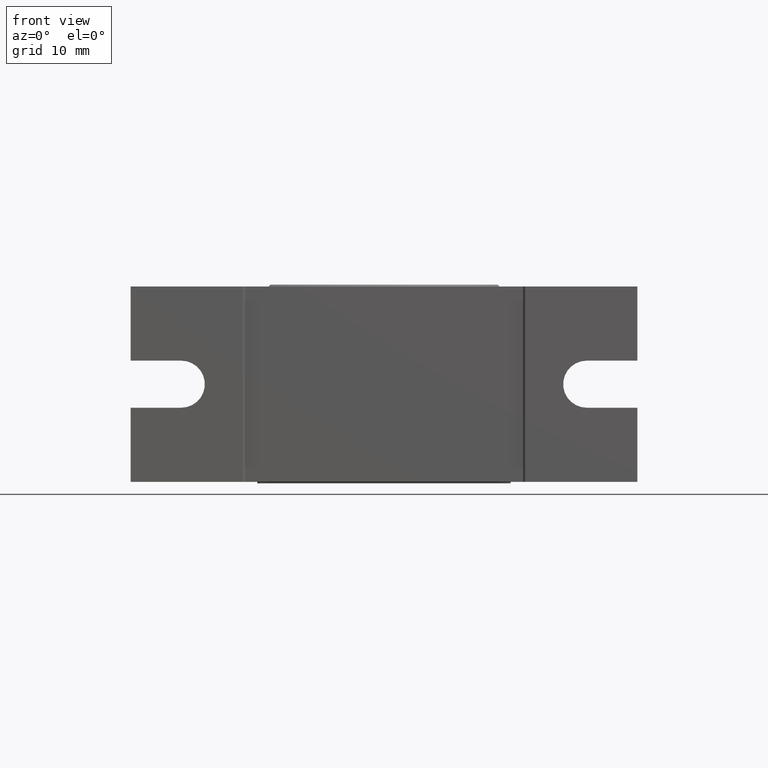
[diagram: clean part render]
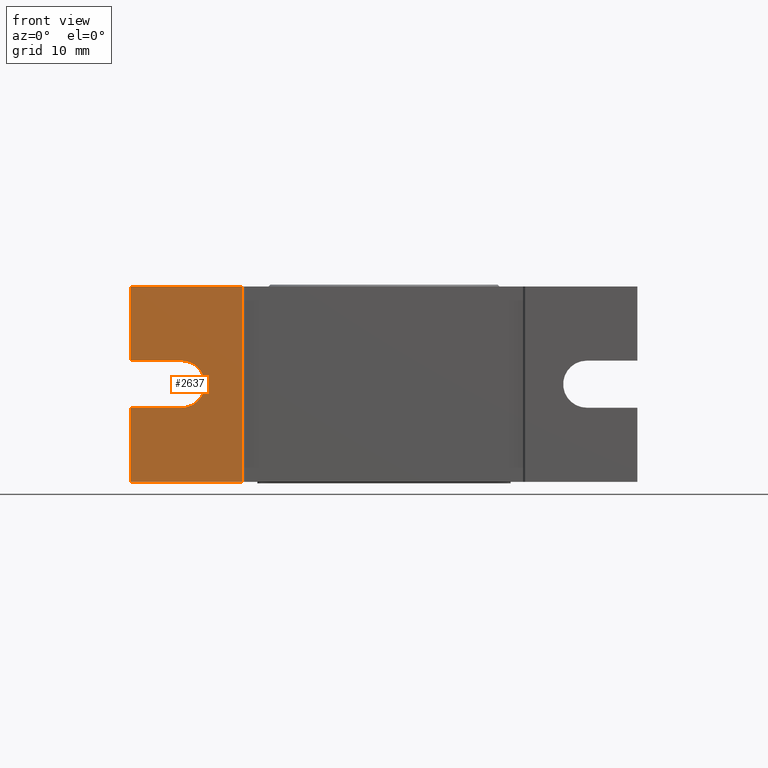
[diagram: same view with one face highlighted and labeled with its STEP entity id]
A machine part, front view. The second image highlights one B-rep face of the part: STEP entity #2637.
In plain terms, the highlighted planar face has unit normal (0, 1, 0).
Its self-contained STEP definition (entity closure, byte-faithful):
#140 = DIRECTION ( 'NONE',  ( 1.000000000000000000, 0.0000000000000000000, 0.0000000000000000000 ) ) ;
#428 = CARTESIAN_POINT ( 'NONE',  ( -28.00000000000000000, -20.00000000000000000, -2.143061119189159800E-015 ) ) ;
#500 = ORIENTED_EDGE ( 'NONE', *, *, #21146, .T. ) ;
#960 = LINE ( 'NONE', #5271, #20484 ) ;
#1317 = LINE ( 'NONE', #10661, #19674 ) ;
#1440 = ORIENTED_EDGE ( 'NONE', *, *, #14490, .F. ) ;
#2619 = CARTESIAN_POINT ( 'NONE',  ( -28.00000000000000000, -20.00000000000000000, -3.250000000000000000 ) ) ;
#2636 = DIRECTION ( 'NONE',  ( -1.000000000000000000, 0.0000000000000000000, 6.814985084194599900E-016 ) ) ;
#2637 = ADVANCED_FACE ( 'NONE', ( #12736 ), #8915, .F. ) ;
#3308 = CARTESIAN_POINT ( 'NONE',  ( -35.00000000000000000, -20.00000000000000000, 13.50000000000000000 ) ) ;
#3862 = LINE ( 'NONE', #9456, #15058 ) ;
#3874 = ORIENTED_EDGE ( 'NONE', *, *, #17221, .T. ) ;
#4204 = LINE ( 'NONE', #18202, #23699 ) ;
#4227 = CARTESIAN_POINT ( 'NONE',  ( -35.00000000000000000, -20.00000000000000000, 3.250000000000000000 ) ) ;
#4575 = ORIENTED_EDGE ( 'NONE', *, *, #18875, .T. ) ;
#5271 = CARTESIAN_POINT ( 'NONE',  ( -35.00000000000000000, -20.00000000000000000, 13.50000000000000000 ) ) ;
#5507 = VERTEX_POINT ( 'NONE', #2619 ) ;
#6697 = CARTESIAN_POINT ( 'NONE',  ( -35.00000000000000000, -20.00000000000000000, 13.50000000000000000 ) ) ;
#7678 = LINE ( 'NONE', #11793, #19167 ) ;
#7885 = CARTESIAN_POINT ( 'NONE',  ( -19.50000000000000000, -20.00000000000000000, 13.50000000000000000 ) ) ;
#8911 = EDGE_CURVE ( 'NONE', #21795, #15845, #3862, .T. ) ;
#8915 = PLANE ( 'NONE',  #13860 ) ;
#9196 = EDGE_CURVE ( 'NONE', #21481, #20076, #22379, .T. ) ;
#9456 = CARTESIAN_POINT ( 'NONE',  ( -35.00000000000000000, -20.00000000000000000, -13.50000000000000000 ) ) ;
#9684 = DIRECTION ( 'NONE',  ( 0.0000000000000000000, 1.000000000000000000, 0.0000000000000000000 ) ) ;
#10292 = CARTESIAN_POINT ( 'NONE',  ( -28.00000000000000000, -20.00000000000000000, 3.250000000000000000 ) ) ;
#10661 = CARTESIAN_POINT ( 'NONE',  ( -19.50000000000000000, -20.00000000000000000, -13.50000000000000000 ) ) ;
#11793 = CARTESIAN_POINT ( 'NONE',  ( -35.00000000000000000, -20.00000000000000000, -3.250000000000000000 ) ) ;
#12232 = CARTESIAN_POINT ( 'NONE',  ( -35.00000000000000000, -20.00000000000000000, 3.250000000000000000 ) ) ;
#12355 = VECTOR ( 'NONE', #13448, 1000.000000000000000 ) ;
#12634 = DIRECTION ( 'NONE',  ( 0.0000000000000000000, 0.0000000000000000000, 1.000000000000000000 ) ) ;
#12736 = FACE_OUTER_BOUND ( 'NONE', #21787, .T. ) ;
#13176 = CARTESIAN_POINT ( 'NONE',  ( -35.00000000000000000, -20.00000000000000000, -3.250000000000000000 ) ) ;
#13283 = CARTESIAN_POINT ( 'NONE',  ( -35.00000000000000000, -20.00000000000000000, -13.50000000000000000 ) ) ;
#13448 = DIRECTION ( 'NONE',  ( 1.000000000000000000, 0.0000000000000000000, 6.195440985631449200E-017 ) ) ;
#13860 = AXIS2_PLACEMENT_3D ( 'NONE', #3308, #18158, #12634 ) ;
#14490 = EDGE_CURVE ( 'NONE', #17694, #21313, #15260, .T. ) ;
#14504 = DIRECTION ( 'NONE',  ( 0.0000000000000000000, 0.0000000000000000000, -1.000000000000000000 ) ) ;
#14509 = DIRECTION ( 'NONE',  ( 0.0000000000000000000, 0.0000000000000000000, 1.000000000000000000 ) ) ;
#14651 = DIRECTION ( 'NONE',  ( 0.0000000000000000000, 0.0000000000000000000, -1.000000000000000000 ) ) ;
#15058 = VECTOR ( 'NONE', #18679, 1000.000000000000000 ) ;
#15260 = LINE ( 'NONE', #20292, #18960 ) ;
#15511 = CIRCLE ( 'NONE', #16500, 3.250000000000000000 ) ;
#15540 = EDGE_CURVE ( 'NONE', #20076, #5507, #15511, .T. ) ;
#15845 = VERTEX_POINT ( 'NONE', #22095 ) ;
#16198 = ORIENTED_EDGE ( 'NONE', *, *, #8911, .T. ) ;
#16500 = AXIS2_PLACEMENT_3D ( 'NONE', #428, #9684, #22681 ) ;
#17221 = EDGE_CURVE ( 'NONE', #5507, #22197, #7678, .T. ) ;
#17694 = VERTEX_POINT ( 'NONE', #6697 ) ;
#18158 = DIRECTION ( 'NONE',  ( 0.0000000000000000000, 1.000000000000000000, 0.0000000000000000000 ) ) ;
#18202 = CARTESIAN_POINT ( 'NONE',  ( -35.00000000000000000, -20.00000000000000000, 13.50000000000000000 ) ) ;
#18679 = DIRECTION ( 'NONE',  ( 1.000000000000000000, 0.0000000000000000000, 0.0000000000000000000 ) ) ;
#18803 = EDGE_CURVE ( 'NONE', #15845, #21313, #1317, .T. ) ;
#18846 = ORIENTED_EDGE ( 'NONE', *, *, #18803, .T. ) ;
#18875 = EDGE_CURVE ( 'NONE', #17694, #21481, #4204, .T. ) ;
#18960 = VECTOR ( 'NONE', #140, 1000.000000000000000 ) ;
#19167 = VECTOR ( 'NONE', #2636, 1000.000000000000000 ) ;
#19467 = ORIENTED_EDGE ( 'NONE', *, *, #15540, .T. ) ;
#19627 = ORIENTED_EDGE ( 'NONE', *, *, #9196, .T. ) ;
#19674 = VECTOR ( 'NONE', #14509, 1000.000000000000000 ) ;
#20076 = VERTEX_POINT ( 'NONE', #10292 ) ;
#20292 = CARTESIAN_POINT ( 'NONE',  ( -35.00000000000000000, -20.00000000000000000, 13.50000000000000000 ) ) ;
#20484 = VECTOR ( 'NONE', #14504, 1000.000000000000000 ) ;
#21146 = EDGE_CURVE ( 'NONE', #22197, #21795, #960, .T. ) ;
#21313 = VERTEX_POINT ( 'NONE', #7885 ) ;
#21481 = VERTEX_POINT ( 'NONE', #12232 ) ;
#21787 = EDGE_LOOP ( 'NONE', ( #19467, #3874, #500, #16198, #18846, #1440, #4575, #19627 ) ) ;
#21795 = VERTEX_POINT ( 'NONE', #13283 ) ;
#22095 = CARTESIAN_POINT ( 'NONE',  ( -19.50000000000000000, -20.00000000000000000, -13.50000000000000000 ) ) ;
#22197 = VERTEX_POINT ( 'NONE', #13176 ) ;
#22379 = LINE ( 'NONE', #4227, #12355 ) ;
#22681 = DIRECTION ( 'NONE',  ( 0.0000000000000000000, 0.0000000000000000000, -1.000000000000000000 ) ) ;
#23699 = VECTOR ( 'NONE', #14651, 1000.000000000000000 ) ;